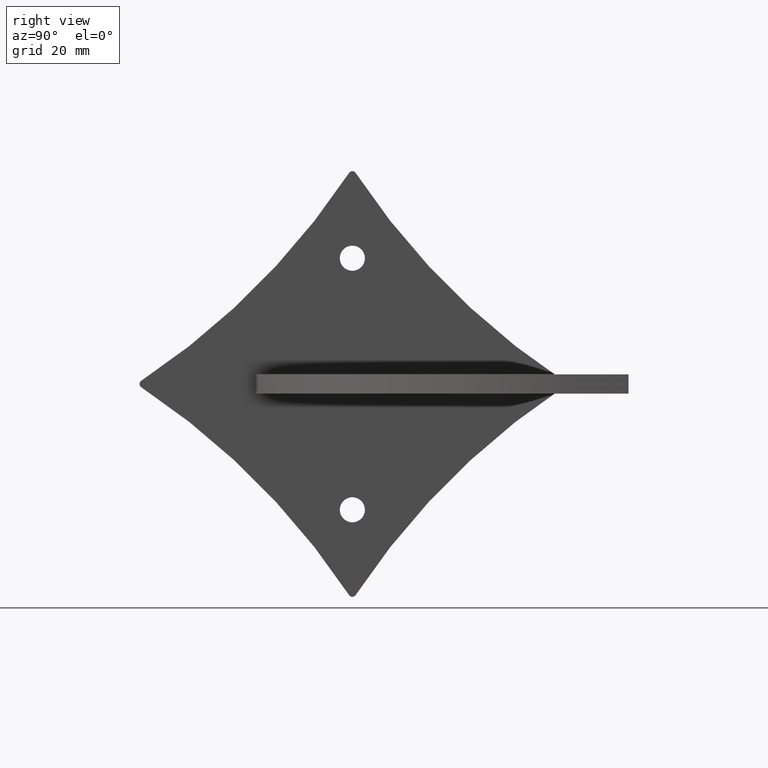
[diagram: clean part render]
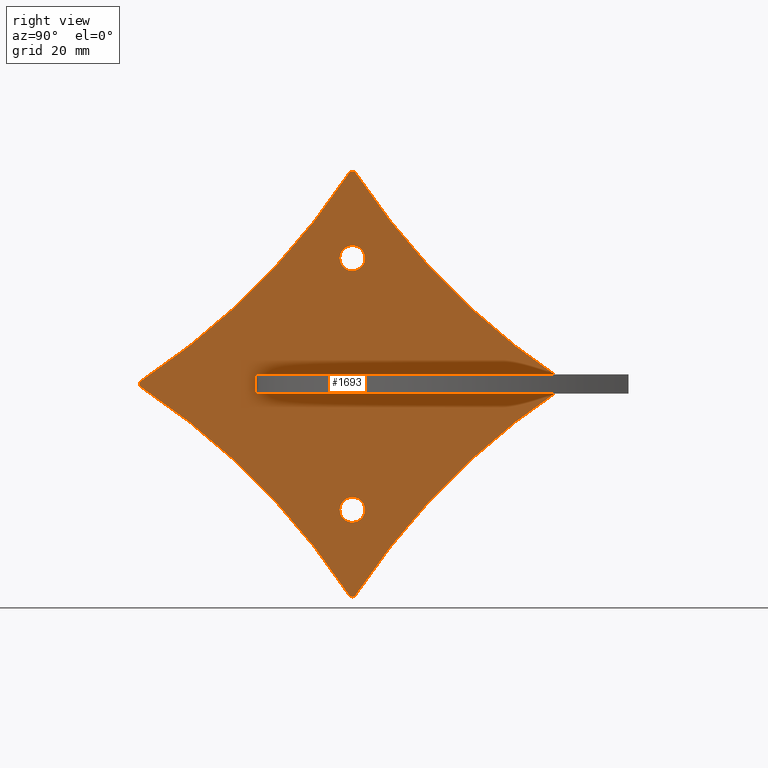
[diagram: same view with one face highlighted and labeled with its STEP entity id]
A machine part, right view. The second image highlights one B-rep face of the part: STEP entity #1693.
In plain terms, the highlighted planar face has unit normal (1, 0, -0).
Its self-contained STEP definition (entity closure, byte-faithful):
#44 = EDGE_CURVE ( 'NONE', #8722, #2630, #4802, .T. ) ;
#307 = EDGE_CURVE ( 'NONE', #3863, #3863, #6340, .T. ) ;
#324 = CARTESIAN_POINT ( 'NONE',  ( 0.000000000000000000, 0.000000000000000000, 35.00000000000000000 ) ) ;
#557 = CIRCLE ( 'NONE', #4879, 3.249999999999993783 ) ;
#573 = CIRCLE ( 'NONE', #10319, 191.0625000000007958 ) ;
#584 = ORIENTED_EDGE ( 'NONE', *, *, #44, .F. ) ;
#587 = ORIENTED_EDGE ( 'NONE', *, *, #9537, .F. ) ;
#780 = EDGE_LOOP ( 'NONE', ( #587 ) ) ;
#866 = VERTEX_POINT ( 'NONE', #5823 ) ;
#965 = DIRECTION ( 'NONE',  ( 2.245724786051271897E-16, 1.000000000000000000, 0.000000000000000000 ) ) ;
#1026 = VERTEX_POINT ( 'NONE', #11240 ) ;
#1165 = ORIENTED_EDGE ( 'NONE', *, *, #5405, .F. ) ;
#1242 = VERTEX_POINT ( 'NONE', #10782 ) ;
#1363 = DIRECTION ( 'NONE',  ( 2.220446049250313081E-15, -1.000000000000000000, 0.000000000000000000 ) ) ;
#1541 = CARTESIAN_POINT ( 'NONE',  ( -1.211306886973890750E-13, 54.55241244806928336, 3.333570925127565587 ) ) ;
#1572 = CARTESIAN_POINT ( 'NONE',  ( -0.000000000000000000, 0.000000000000000000, -51.50000000000000711 ) ) ;
#1573 = DIRECTION ( 'NONE',  ( 2.220446049250313081E-15, -1.000000000000000000, 0.000000000000000000 ) ) ;
#1616 = CARTESIAN_POINT ( 'NONE',  ( 1.211306886973891508E-13, -54.55241244806933310, 3.333570925127580242 ) ) ;
#1693 = ADVANCED_FACE ( 'NONE', ( #9765, #7351, #2215, #4336 ), #4237, .T. ) ;
#1955 = CIRCLE ( 'NONE', #3094, 191.0625000000010232 ) ;
#2056 = CIRCLE ( 'NONE', #9498, 1.000000000000013545 ) ;
#2110 = DIRECTION ( 'NONE',  ( -2.220446049250313081E-15, 1.000000000000000000, 0.000000000000000000 ) ) ;
#2115 = EDGE_CURVE ( 'NONE', #8922, #10616, #2201, .T. ) ;
#2201 = CIRCLE ( 'NONE', #11697, 191.0624999999995453 ) ;
#2215 = FACE_BOUND ( 'NONE', #5140, .T. ) ;
#2241 = CARTESIAN_POINT ( 'NONE',  ( 3.554883405583555002E-13, -160.0977158073165754, 162.5977158073165469 ) ) ;
#2420 = EDGE_CURVE ( 'NONE', #866, #6368, #2056, .T. ) ;
#2630 = VERTEX_POINT ( 'NONE', #10838 ) ;
#2715 = CARTESIAN_POINT ( 'NONE',  ( 1.850899267469426014E-15, -0.8335709251275630338, -52.05241244806933310 ) ) ;
#2738 = DIRECTION ( 'NONE',  ( -2.220446049250313081E-15, 1.000000000000000000, 0.000000000000000000 ) ) ;
#2795 = CARTESIAN_POINT ( 'NONE',  ( 0.000000000000000000, 0.000000000000000000, 56.49999999999999289 ) ) ;
#2810 = DIRECTION ( 'NONE',  ( 2.245724786051271897E-16, 1.000000000000000000, 0.000000000000000000 ) ) ;
#3094 = AXIS2_PLACEMENT_3D ( 'NONE', #2241, #5107, #9610 ) ;
#3158 = VERTEX_POINT ( 'NONE', #3578 ) ;
#3427 = ORIENTED_EDGE ( 'NONE', *, *, #7659, .F. ) ;
#3578 = CARTESIAN_POINT ( 'NONE',  ( -1.850899267469488728E-15, 0.8335709251275913445, -52.05241244806935441 ) ) ;
#3680 = VERTEX_POINT ( 'NONE', #4523 ) ;
#3691 = DIRECTION ( 'NONE',  ( -1.000000000000000000, -2.220446049250313081E-15, 0.000000000000000000 ) ) ;
#3795 = CARTESIAN_POINT ( 'NONE',  ( -1.850899267469502533E-15, 0.8335709251275976728, 57.05241244806931888 ) ) ;
#3863 = VERTEX_POINT ( 'NONE', #11346 ) ;
#3966 = EDGE_CURVE ( 'NONE', #5634, #866, #1955, .T. ) ;
#4024 = CARTESIAN_POINT ( 'NONE',  ( 5.157091764337531993E-15, 24.99999999999999289, 5.000000000000000000 ) ) ;
#4038 = DIRECTION ( 'NONE',  ( 2.220446049250313475E-15, -1.000000000000000000, 0.000000000000000000 ) ) ;
#4101 = DIRECTION ( 'NONE',  ( -0.000000000000000000, -0.000000000000000000, -1.000000000000000000 ) ) ;
#4228 = EDGE_CURVE ( 'NONE', #3158, #8922, #9786, .T. ) ;
#4237 = PLANE ( 'NONE',  #5556 ) ;
#4336 = FACE_OUTER_BOUND ( 'NONE', #4345, .T. ) ;
#4338 = VERTEX_POINT ( 'NONE', #6776 ) ;
#4345 = EDGE_LOOP ( 'NONE', ( #8622, #4805, #8974, #10139, #3427, #8515, #11352, #1165 ) ) ;
#4404 = VERTEX_POINT ( 'NONE', #1541 ) ;
#4429 = EDGE_CURVE ( 'NONE', #1242, #3680, #10754, .T. ) ;
#4523 = CARTESIAN_POINT ( 'NONE',  ( 5.157091764337531993E-15, 24.99999999999999289, 0.000000000000000000 ) ) ;
#4582 = EDGE_LOOP ( 'NONE', ( #11795 ) ) ;
#4790 = CARTESIAN_POINT ( 'NONE',  ( 1.211306886973890750E-13, -54.55241244806929757, 1.666429074872438632 ) ) ;
#4802 = LINE ( 'NONE', #9124, #9214 ) ;
#4805 = ORIENTED_EDGE ( 'NONE', *, *, #8765, .F. ) ;
#4879 = AXIS2_PLACEMENT_3D ( 'NONE', #8283, #11781, #2738 ) ;
#4887 = CARTESIAN_POINT ( 'NONE',  ( 3.554883405583530768E-13, -160.0977158073154953, -157.5977158073154385 ) ) ;
#5017 = DIRECTION ( 'NONE',  ( 2.220446049250313081E-15, -1.000000000000000000, 0.000000000000000000 ) ) ;
#5107 = DIRECTION ( 'NONE',  ( 1.000000000000000000, 2.220446049250313081E-15, -0.000000000000000000 ) ) ;
#5140 = EDGE_LOOP ( 'NONE', ( #584, #7539, #7654, #10521 ) ) ;
#5278 = CARTESIAN_POINT ( 'NONE',  ( -2.376962136089360518E-13, 107.0488579036582024, 82.54885790365811715 ) ) ;
#5280 = DIRECTION ( 'NONE',  ( -1.000000000000000000, -2.220446049250313081E-15, 0.000000000000000000 ) ) ;
#5405 = EDGE_CURVE ( 'NONE', #4338, #3158, #7475, .T. ) ;
#5556 = AXIS2_PLACEMENT_3D ( 'NONE', #5278, #10609, #11611 ) ;
#5634 = VERTEX_POINT ( 'NONE', #1616 ) ;
#5785 = EDGE_CURVE ( 'NONE', #2630, #3680, #5883, .T. ) ;
#5823 = CARTESIAN_POINT ( 'NONE',  ( 1.850899267469538032E-15, -0.8335709251276191001, 57.05241244806936862 ) ) ;
#5883 = LINE ( 'NONE', #7362, #8314 ) ;
#5899 = DIRECTION ( 'NONE',  ( -1.000000000000000000, -2.220446049250313081E-15, 0.000000000000000000 ) ) ;
#6217 = EDGE_CURVE ( 'NONE', #8722, #1242, #9171, .T. ) ;
#6266 = CIRCLE ( 'NONE', #11769, 1.000000000000000888 ) ;
#6340 = CIRCLE ( 'NONE', #7551, 3.250000000000000888 ) ;
#6368 = VERTEX_POINT ( 'NONE', #3795 ) ;
#6746 = VECTOR ( 'NONE', #965, 1000.000000000000000 ) ;
#6776 = CARTESIAN_POINT ( 'NONE',  ( -1.211306886973892265E-13, 54.55241244806936862, 1.666429074872383120 ) ) ;
#7301 = DIRECTION ( 'NONE',  ( -1.000000000000000000, -2.220446049250313081E-15, 0.000000000000000000 ) ) ;
#7351 = FACE_BOUND ( 'NONE', #4582, .T. ) ;
#7362 = CARTESIAN_POINT ( 'NONE',  ( -4.572202007906463202E-16, 1.026790737598893807E-31, 0.000000000000000000 ) ) ;
#7475 = CIRCLE ( 'NONE', #9360, 191.0624999999992610 ) ;
#7539 = ORIENTED_EDGE ( 'NONE', *, *, #6217, .T. ) ;
#7551 = AXIS2_PLACEMENT_3D ( 'NONE', #324, #7726, #2110 ) ;
#7654 = ORIENTED_EDGE ( 'NONE', *, *, #4429, .T. ) ;
#7659 = EDGE_CURVE ( 'NONE', #10616, #5634, #6266, .T. ) ;
#7726 = DIRECTION ( 'NONE',  ( 1.000000000000000000, 2.220446049250313081E-15, 0.000000000000000000 ) ) ;
#8125 = DIRECTION ( 'NONE',  ( 2.220446049250312686E-15, -1.000000000000000000, 0.000000000000000000 ) ) ;
#8183 = VECTOR ( 'NONE', #4101, 1000.000000000000000 ) ;
#8225 = DIRECTION ( 'NONE',  ( -2.220446049250312686E-15, 1.000000000000000000, 0.000000000000000000 ) ) ;
#8283 = CARTESIAN_POINT ( 'NONE',  ( 0.000000000000000000, 0.000000000000000000, -30.00000000000000000 ) ) ;
#8314 = VECTOR ( 'NONE', #2810, 1000.000000000000000 ) ;
#8473 = DIRECTION ( 'NONE',  ( 1.000000000000000000, 2.220446049250313081E-15, -0.000000000000000000 ) ) ;
#8515 = ORIENTED_EDGE ( 'NONE', *, *, #2115, .F. ) ;
#8600 = EDGE_CURVE ( 'NONE', #4404, #4338, #9687, .T. ) ;
#8622 = ORIENTED_EDGE ( 'NONE', *, *, #8600, .F. ) ;
#8640 = CARTESIAN_POINT ( 'NONE',  ( 5.537868257551096526E-14, -24.99999999999999289, 5.000000000000000000 ) ) ;
#8722 = VERTEX_POINT ( 'NONE', #8640 ) ;
#8765 = EDGE_CURVE ( 'NONE', #6368, #4404, #573, .T. ) ;
#8805 = AXIS2_PLACEMENT_3D ( 'NONE', #1572, #5280, #8225 ) ;
#8866 = DIRECTION ( 'NONE',  ( 1.000000000000000000, 2.220446049250313081E-15, -0.000000000000000000 ) ) ;
#8922 = VERTEX_POINT ( 'NONE', #2715 ) ;
#8974 = ORIENTED_EDGE ( 'NONE', *, *, #2420, .F. ) ;
#9124 = CARTESIAN_POINT ( 'NONE',  ( -6.071532165918824830E-15, -24.99999999999999289, 5.000000000000000000 ) ) ;
#9170 = CARTESIAN_POINT ( 'NONE',  ( -4.572202007906463202E-16, 1.026790737598893807E-31, 5.000000000000000000 ) ) ;
#9171 = LINE ( 'NONE', #9170, #6746 ) ;
#9214 = VECTOR ( 'NONE', #11787, 1000.000000000000000 ) ;
#9360 = AXIS2_PLACEMENT_3D ( 'NONE', #11812, #11362, #5017 ) ;
#9498 = AXIS2_PLACEMENT_3D ( 'NONE', #2795, #7301, #8125 ) ;
#9537 = EDGE_CURVE ( 'NONE', #1026, #1026, #557, .T. ) ;
#9610 = DIRECTION ( 'NONE',  ( 2.220446049250312686E-15, -1.000000000000000000, 0.000000000000000000 ) ) ;
#9687 = CIRCLE ( 'NONE', #9710, 1.000000000000000888 ) ;
#9710 = AXIS2_PLACEMENT_3D ( 'NONE', #9986, #3691, #11817 ) ;
#9765 = FACE_BOUND ( 'NONE', #780, .T. ) ;
#9786 = CIRCLE ( 'NONE', #8805, 0.9999999999999844569 ) ;
#9986 = CARTESIAN_POINT ( 'NONE',  ( -1.199040866595168811E-13, 53.99999999999999289, 2.499999999999955591 ) ) ;
#10139 = ORIENTED_EDGE ( 'NONE', *, *, #3966, .F. ) ;
#10319 = AXIS2_PLACEMENT_3D ( 'NONE', #10651, #8866, #1573 ) ;
#10521 = ORIENTED_EDGE ( 'NONE', *, *, #5785, .F. ) ;
#10609 = DIRECTION ( 'NONE',  ( 1.000000000000000000, 2.220446049250313081E-15, -0.000000000000000000 ) ) ;
#10616 = VERTEX_POINT ( 'NONE', #4790 ) ;
#10651 = CARTESIAN_POINT ( 'NONE',  ( -3.554883405583551468E-13, 160.0977158073164048, 162.5977158073162911 ) ) ;
#10754 = LINE ( 'NONE', #4024, #8183 ) ;
#10782 = CARTESIAN_POINT ( 'NONE',  ( -5.547043472072062119E-14, 24.99999999999934275, 5.000000000000000000 ) ) ;
#10838 = CARTESIAN_POINT ( 'NONE',  ( 5.551115123125776391E-14, -24.99999999999999289, 0.000000000000000000 ) ) ;
#11240 = CARTESIAN_POINT ( 'NONE',  ( -7.216449660063503313E-15, 3.249999999999993783, -30.00000000000000000 ) ) ;
#11346 = CARTESIAN_POINT ( 'NONE',  ( -7.216449660063519090E-15, 3.250000000000000888, 35.00000000000000000 ) ) ;
#11352 = ORIENTED_EDGE ( 'NONE', *, *, #4228, .F. ) ;
#11362 = DIRECTION ( 'NONE',  ( 1.000000000000000000, 2.220446049250313081E-15, -0.000000000000000000 ) ) ;
#11440 = CARTESIAN_POINT ( 'NONE',  ( 1.199040866595168811E-13, -53.99999999999999289, 2.500000000000003553 ) ) ;
#11611 = DIRECTION ( 'NONE',  ( -2.220446049250313081E-15, 1.000000000000000000, 0.000000000000000000 ) ) ;
#11697 = AXIS2_PLACEMENT_3D ( 'NONE', #4887, #8473, #4038 ) ;
#11769 = AXIS2_PLACEMENT_3D ( 'NONE', #11440, #5899, #1363 ) ;
#11781 = DIRECTION ( 'NONE',  ( 1.000000000000000000, 2.220446049250313081E-15, 0.000000000000000000 ) ) ;
#11787 = DIRECTION ( 'NONE',  ( -0.000000000000000000, -0.000000000000000000, -1.000000000000000000 ) ) ;
#11795 = ORIENTED_EDGE ( 'NONE', *, *, #307, .F. ) ;
#11812 = CARTESIAN_POINT ( 'NONE',  ( -3.554883405583525214E-13, 160.0977158073152395, -157.5977158073153532 ) ) ;
#11817 = DIRECTION ( 'NONE',  ( -2.220446049250313081E-15, 1.000000000000000000, 0.000000000000000000 ) ) ;